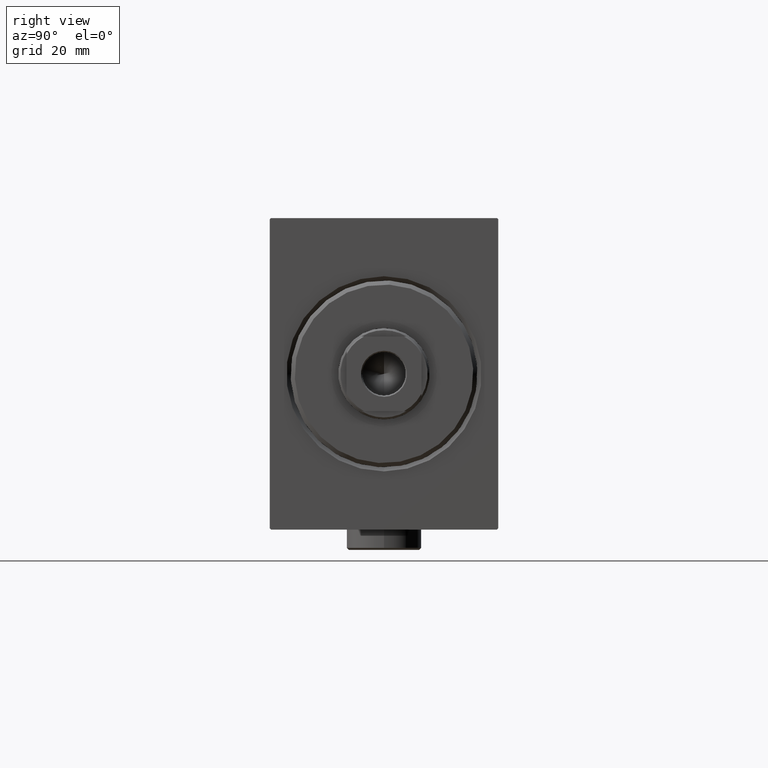
[diagram: clean part render]
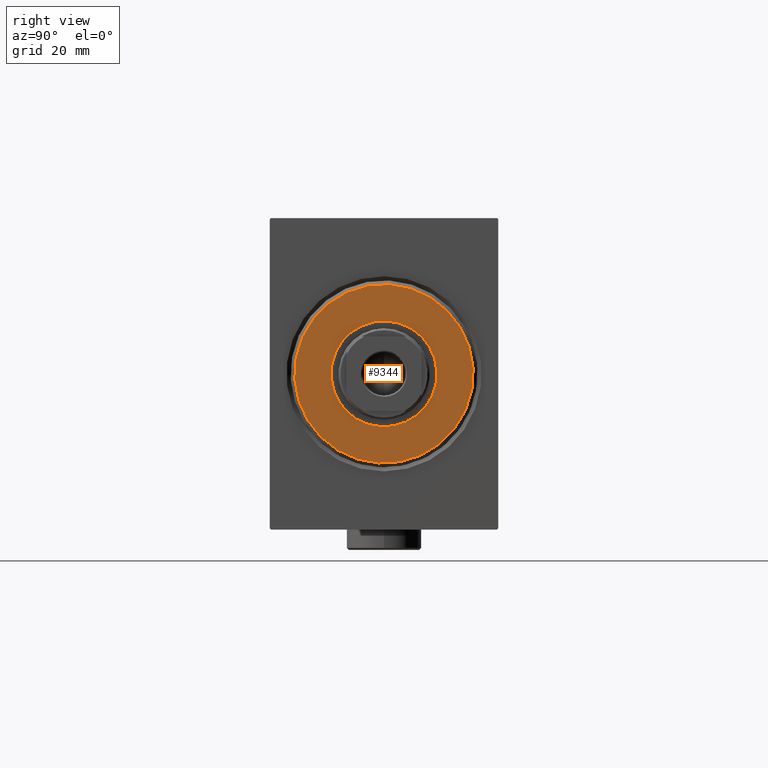
[diagram: same view with one face highlighted and labeled with its STEP entity id]
A machine part, right view. The second image highlights one B-rep face of the part: STEP entity #9344.
In plain terms, the highlighted planar face has unit normal (1, -0, -0).
Its self-contained STEP definition (entity closure, byte-faithful):
#4597 = CIRCLE ( 'NONE', #43963, 21.50000000000000355 ) ;
#5602 = CARTESIAN_POINT ( 'NONE',  ( 3.000000000000000000, 0.000000000000000000, -12.75000000000000000 ) ) ;
#5793 = DIRECTION ( 'NONE',  ( 0.000000000000000000, 0.000000000000000000, -1.000000000000000000 ) ) ;
#6754 = EDGE_LOOP ( 'NONE', ( #12737, #36969 ) ) ;
#6997 = CIRCLE ( 'NONE', #19890, 12.75000000000000000 ) ;
#7766 = CARTESIAN_POINT ( 'NONE',  ( 3.000000000000000000, 0.000000000000000000, 21.50000000000000355 ) ) ;
#8819 = DIRECTION ( 'NONE',  ( 0.000000000000000000, 0.000000000000000000, -1.000000000000000000 ) ) ;
#9055 = DIRECTION ( 'NONE',  ( 0.000000000000000000, 0.000000000000000000, -1.000000000000000000 ) ) ;
#9344 = ADVANCED_FACE ( 'NONE', ( #37662, #34077 ), #33247, .T. ) ;
#10380 = DIRECTION ( 'NONE',  ( 0.000000000000000000, 0.000000000000000000, -1.000000000000000000 ) ) ;
#12051 = AXIS2_PLACEMENT_3D ( 'NONE', #26195, #39883, #33141 ) ;
#12737 = ORIENTED_EDGE ( 'NONE', *, *, #34894, .F. ) ;
#12865 = DIRECTION ( 'NONE',  ( 1.000000000000000000, -0.000000000000000000, 0.000000000000000000 ) ) ;
#15225 = CARTESIAN_POINT ( 'NONE',  ( 3.000000000000000000, 2.694222958124177598E-15, -21.50000000000000355 ) ) ;
#16573 = ORIENTED_EDGE ( 'NONE', *, *, #43435, .T. ) ;
#17579 = VERTEX_POINT ( 'NONE', #30023 ) ;
#19890 = AXIS2_PLACEMENT_3D ( 'NONE', #27405, #44235, #10380 ) ;
#21751 = EDGE_LOOP ( 'NONE', ( #39643, #16573 ) ) ;
#22165 = DIRECTION ( 'NONE',  ( 1.000000000000000000, 0.000000000000000000, 0.000000000000000000 ) ) ;
#25375 = AXIS2_PLACEMENT_3D ( 'NONE', #39882, #22165, #5793 ) ;
#25411 = CIRCLE ( 'NONE', #25375, 12.75000000000000000 ) ;
#25420 = VERTEX_POINT ( 'NONE', #7766 ) ;
#26195 = CARTESIAN_POINT ( 'NONE',  ( 3.000000000000000000, 0.000000000000000000, 0.000000000000000000 ) ) ;
#26940 = AXIS2_PLACEMENT_3D ( 'NONE', #39994, #12865, #9055 ) ;
#27405 = CARTESIAN_POINT ( 'NONE',  ( 3.000000000000000000, 0.000000000000000000, 0.000000000000000000 ) ) ;
#28118 = EDGE_CURVE ( 'NONE', #25420, #40018, #4597, .T. ) ;
#29423 = VERTEX_POINT ( 'NONE', #5602 ) ;
#29658 = CARTESIAN_POINT ( 'NONE',  ( 3.000000000000000000, 0.000000000000000000, 0.000000000000000000 ) ) ;
#29932 = CIRCLE ( 'NONE', #12051, 21.50000000000000355 ) ;
#30023 = CARTESIAN_POINT ( 'NONE',  ( 3.000000000000000000, 1.561424668912875111E-15, 12.75000000000000000 ) ) ;
#33141 = DIRECTION ( 'NONE',  ( 0.000000000000000000, 0.000000000000000000, -1.000000000000000000 ) ) ;
#33247 = PLANE ( 'NONE',  #26940 ) ;
#34077 = FACE_BOUND ( 'NONE', #6754, .T. ) ;
#34894 = EDGE_CURVE ( 'NONE', #29423, #17579, #25411, .T. ) ;
#36969 = ORIENTED_EDGE ( 'NONE', *, *, #41254, .F. ) ;
#37662 = FACE_OUTER_BOUND ( 'NONE', #21751, .T. ) ;
#39643 = ORIENTED_EDGE ( 'NONE', *, *, #28118, .T. ) ;
#39882 = CARTESIAN_POINT ( 'NONE',  ( 3.000000000000000000, 0.000000000000000000, 0.000000000000000000 ) ) ;
#39883 = DIRECTION ( 'NONE',  ( 1.000000000000000000, -0.000000000000000000, 0.000000000000000000 ) ) ;
#39994 = CARTESIAN_POINT ( 'NONE',  ( 3.000000000000000000, 0.000000000000000000, 0.000000000000000000 ) ) ;
#40018 = VERTEX_POINT ( 'NONE', #15225 ) ;
#40206 = DIRECTION ( 'NONE',  ( 1.000000000000000000, -0.000000000000000000, 0.000000000000000000 ) ) ;
#41254 = EDGE_CURVE ( 'NONE', #17579, #29423, #6997, .T. ) ;
#43435 = EDGE_CURVE ( 'NONE', #40018, #25420, #29932, .T. ) ;
#43963 = AXIS2_PLACEMENT_3D ( 'NONE', #29658, #40206, #8819 ) ;
#44235 = DIRECTION ( 'NONE',  ( 1.000000000000000000, 0.000000000000000000, 0.000000000000000000 ) ) ;